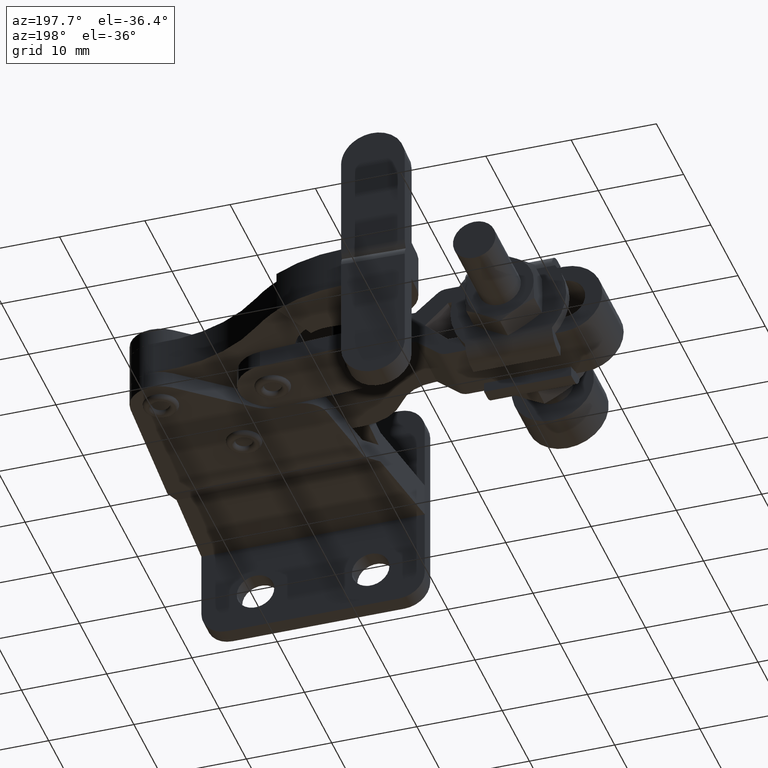
[diagram: clean part render]
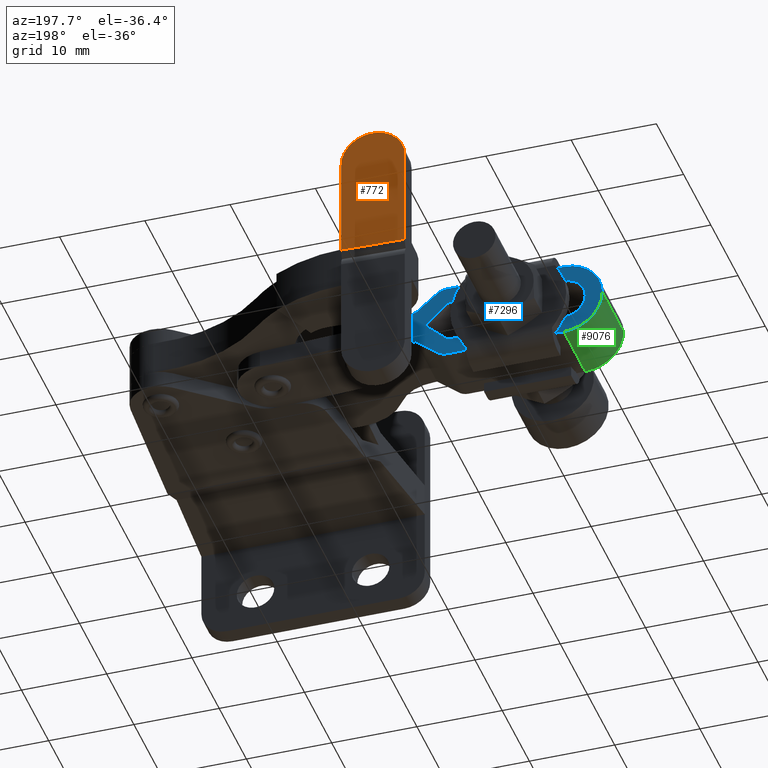
[diagram: same view with three faces highlighted in distinct colors, each labeled with its STEP entity id]
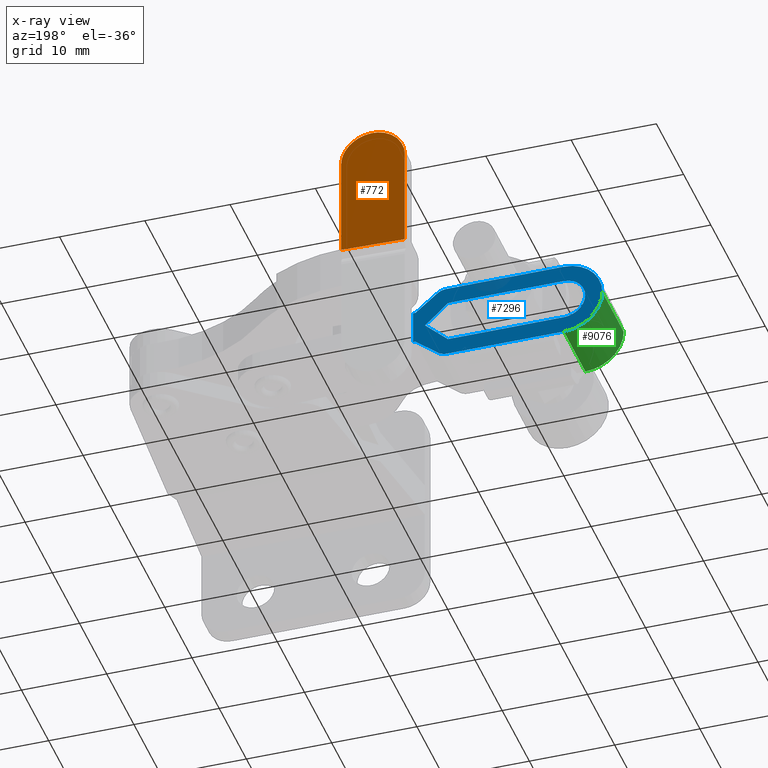
[diagram: x-ray of the same camera — body ghosted, the three highlighted faces saturated]
A machine part, auxiliary view with three faces highlighted in distinct colors.
The next image is the same camera in x-ray (body ghosted, the three faces saturated) — at least one of them is partly hidden behind the body in this view.
Their STEP definitions:

[orange] entity #772 — the highlighted planar face has unit normal (0.031, -0.9995, 0).
#279 = LINE ( 'NONE', #6201, #1841 ) ;
#337 = ORIENTED_EDGE ( 'NONE', *, *, #1821, .T. ) ;
#610 = CARTESIAN_POINT ( 'NONE',  ( -1.994264305203278500, 73.87658695655893800, 27.14979700761274700 ) ) ;
#708 = VECTOR ( 'NONE', #4959, 1000.000000000000100 ) ;
#747 = LINE ( 'NONE', #8525, #8665 ) ;
#772 = ADVANCED_FACE ( 'NONE', ( #1321 ), #6748, .F. ) ;
#1226 = CARTESIAN_POINT ( 'NONE',  ( -1.494685940705030400, 73.89207464042495100, 12.14979700761274700 ) ) ;
#1321 = FACE_OUTER_BOUND ( 'NONE', #4382, .T. ) ;
#1330 = VERTEX_POINT ( 'NONE', #2840 ) ;
#1409 = DIRECTION ( 'NONE',  ( 0.03098662345940447400, -0.9995197992869301300, 0.0000000000000000000 ) ) ;
#1821 = EDGE_CURVE ( 'NONE', #5206, #1330, #6803, .T. ) ;
#1841 = VECTOR ( 'NONE', #2393, 1000.000000000000000 ) ;
#2077 = EDGE_CURVE ( 'NONE', #9546, #5885, #9033, .T. ) ;
#2393 = DIRECTION ( 'NONE',  ( 0.0000000000000000000, 0.0000000000000000000, -1.000000000000000000 ) ) ;
#2840 = CARTESIAN_POINT ( 'NONE',  ( -8.892783287429612200, 73.66272244853988100, 12.14979700761274700 ) ) ;
#3006 = CARTESIAN_POINT ( 'NONE',  ( -1.494685940705030400, 73.89207464042495100, 23.94897143930094100 ) ) ;
#3671 = ORIENTED_EDGE ( 'NONE', *, *, #7273, .F. ) ;
#4382 = EDGE_LOOP ( 'NONE', ( #7222, #337, #3671, #7305 ) ) ;
#4514 = CARTESIAN_POINT ( 'NONE',  ( -8.892783287429777400, 73.66272244853989500, 31.35062257592454000 ) ) ;
#4959 = DIRECTION ( 'NONE',  ( -0.9995197992869301300, -0.03098662345940447400, -0.0000000000000000000 ) ) ;
#5206 = VERTEX_POINT ( 'NONE', #1226 ) ;
#5744 = CARTESIAN_POINT ( 'NONE',  ( -1.994264305203278500, 73.87658695655893800, 12.14979700761274700 ) ) ;
#5885 = VERTEX_POINT ( 'NONE', #7421 ) ;
#6201 = CARTESIAN_POINT ( 'NONE',  ( -1.494685940705030400, 73.89207464042495100, 27.14979700761274700 ) ) ;
#6248 = DIRECTION ( 'NONE',  ( 0.0000000000000000000, 0.0000000000000000000, -1.000000000000000000 ) ) ;
#6748 = PLANE ( 'NONE',  #8981 ) ;
#6803 = LINE ( 'NONE', #5744, #708 ) ;
#7222 = ORIENTED_EDGE ( 'NONE', *, *, #7708, .T. ) ;
#7273 = EDGE_CURVE ( 'NONE', #9546, #1330, #747, .T. ) ;
#7305 = ORIENTED_EDGE ( 'NONE', *, *, #2077, .T. ) ;
#7421 = CARTESIAN_POINT ( 'NONE',  ( -1.494685940705030400, 73.89207464042495100, 23.94897143930094100 ) ) ;
#7557 = DIRECTION ( 'NONE',  ( 0.9995197992869301300, 0.03098662345940447400, 0.0000000000000000000 ) ) ;
#7602 = CARTESIAN_POINT ( 'NONE',  ( -8.892783287429612200, 73.66272244853988100, 23.94897143930093400 ) ) ;
#7708 = EDGE_CURVE ( 'NONE', #5885, #5206, #279, .T. ) ;
#8525 = CARTESIAN_POINT ( 'NONE',  ( -8.892783287429612200, 73.66272244853988100, 13.14979700761274700 ) ) ;
#8665 = VECTOR ( 'NONE', #6248, 1000.000000000000000 ) ;
#8981 = AXIS2_PLACEMENT_3D ( 'NONE', #610, #1409, #7557 ) ;
#9033 =( BOUNDED_CURVE ( )  B_SPLINE_CURVE ( 3, ( #7602, #4514, #9115, #3006 ),
 .UNSPECIFIED., .F., .F. ) 
 B_SPLINE_CURVE_WITH_KNOTS ( ( 4, 4 ),
 ( 3.141592653589794000, 6.283185307179583600 ),
 .UNSPECIFIED. ) 
 CURVE ( )  GEOMETRIC_REPRESENTATION_ITEM ( )  RATIONAL_B_SPLINE_CURVE ( ( 1.000000000000000000, 0.3333333333333345900, 0.3333333333333345900, 1.000000000000000000 ) ) 
 REPRESENTATION_ITEM ( '' )  );
#9115 = CARTESIAN_POINT ( 'NONE',  ( -1.494685940705183100, 73.89207464042496600, 31.35062257592455400 ) ) ;
#9546 = VERTEX_POINT ( 'NONE', #9803 ) ;
#9803 = CARTESIAN_POINT ( 'NONE',  ( -8.892783287429612200, 73.66272244853988100, 23.94897143930093400 ) ) ;

[blue] entity #7296 — the highlighted planar face has unit normal (0, -1, 0).
#20 = CARTESIAN_POINT ( 'NONE',  ( -5.418919598095251400, 58.80000000000234900, 9.149797007612779300 ) ) ;
#180 = DIRECTION ( 'NONE',  ( 3.935653886122381100E-017, -1.000000000000000000, 9.155670635837064900E-019 ) ) ;
#205 = EDGE_CURVE ( 'NONE', #528, #1570, #7203, .T. ) ;
#245 = LINE ( 'NONE', #8180, #9680 ) ;
#286 = VERTEX_POINT ( 'NONE', #2490 ) ;
#290 = VERTEX_POINT ( 'NONE', #6278 ) ;
#372 = LINE ( 'NONE', #2207, #8258 ) ;
#429 = LINE ( 'NONE', #9842, #6302 ) ;
#467 = CIRCLE ( 'NONE', #1769, 2.499999999999998700 ) ;
#476 = DIRECTION ( 'NONE',  ( 3.935653886122381100E-017, -1.000000000000000000, 9.155670635837064900E-019 ) ) ;
#494 = ORIENTED_EDGE ( 'NONE', *, *, #5639, .T. ) ;
#497 = CARTESIAN_POINT ( 'NONE',  ( -22.80640179179125200, 58.80000000000234900, 11.14979700761280200 ) ) ;
#528 = VERTEX_POINT ( 'NONE', #1389 ) ;
#758 = DIRECTION ( 'NONE',  ( 0.7756134828186288500, 3.075531894660542300E-017, 0.6312081473412368700 ) ) ;
#790 = VERTEX_POINT ( 'NONE', #9105 ) ;
#806 = ORIENTED_EDGE ( 'NONE', *, *, #8142, .F. ) ;
#847 = EDGE_CURVE ( 'NONE', #3245, #286, #372, .T. ) ;
#1016 = DIRECTION ( 'NONE',  ( 3.935653886122381100E-017, -1.000000000000000000, 9.155670635837064900E-019 ) ) ;
#1046 = LINE ( 'NONE', #3429, #8941 ) ;
#1054 = VERTEX_POINT ( 'NONE', #3289 ) ;
#1097 = CARTESIAN_POINT ( 'NONE',  ( -6.528674530764204700, 58.80000000000234900, 11.14979700761278500 ) ) ;
#1131 = LINE ( 'NONE', #7225, #7466 ) ;
#1240 = EDGE_CURVE ( 'NONE', #7940, #1054, #467, .T. ) ;
#1243 = VERTEX_POINT ( 'NONE', #8112 ) ;
#1262 = DIRECTION ( 'NONE',  ( -1.000000000000000000, 0.0000000000000000000, 6.938893903907232300E-016 ) ) ;
#1306 = EDGE_CURVE ( 'NONE', #1817, #528, #245, .T. ) ;
#1312 = VECTOR ( 'NONE', #7633, 1000.000000000000200 ) ;
#1360 = ORIENTED_EDGE ( 'NONE', *, *, #205, .F. ) ;
#1389 = CARTESIAN_POINT ( 'NONE',  ( -5.416401791791470200, 58.80000000000234900, 13.14979700761277600 ) ) ;
#1497 = DIRECTION ( 'NONE',  ( -1.374065431884250400E-015, -9.155670635845381100E-019, -1.000000000000000000 ) ) ;
#1570 = VERTEX_POINT ( 'NONE', #9337 ) ;
#1573 = LINE ( 'NONE', #6858, #1312 ) ;
#1578 = AXIS2_PLACEMENT_3D ( 'NONE', #5049, #476, #5828 ) ;
#1588 = VECTOR ( 'NONE', #8298, 1000.000000000000000 ) ;
#1610 = VERTEX_POINT ( 'NONE', #6284 ) ;
#1769 = AXIS2_PLACEMENT_3D ( 'NONE', #497, #5847, #1262 ) ;
#1774 = CARTESIAN_POINT ( 'NONE',  ( -9.088997005149490600, 58.80000000000234900, 8.349797007612791000 ) ) ;
#1784 = CARTESIAN_POINT ( 'NONE',  ( -27.30640179179124900, 58.80000000000234900, 11.14979700761280600 ) ) ;
#1817 = VERTEX_POINT ( 'NONE', #6499 ) ;
#2108 = CARTESIAN_POINT ( 'NONE',  ( -22.80640179179125200, 58.80000000000234900, 11.14979700761280200 ) ) ;
#2207 = CARTESIAN_POINT ( 'NONE',  ( -22.80640179179125900, 58.80000000000234900, 6.649797007612803200 ) ) ;
#2490 = CARTESIAN_POINT ( 'NONE',  ( -9.088997005149559900, 58.80000000000234900, 6.649797007612788100 ) ) ;
#2520 = DIRECTION ( 'NONE',  ( -1.000000000000000000, 0.0000000000000000000, 1.020425574104003000E-015 ) ) ;
#2810 = VERTEX_POINT ( 'NONE', #6362 ) ;
#2844 = DIRECTION ( 'NONE',  ( -1.000000000000000000, 0.0000000000000000000, 7.709882115452480100E-016 ) ) ;
#2882 = VERTEX_POINT ( 'NONE', #8055 ) ;
#2922 = CARTESIAN_POINT ( 'NONE',  ( -22.80640179179125200, 58.80000000000234900, 13.64979700761280200 ) ) ;
#3118 = LINE ( 'NONE', #5281, #6948 ) ;
#3234 = CIRCLE ( 'NONE', #1578, 4.499999999999997300 ) ;
#3245 = VERTEX_POINT ( 'NONE', #7752 ) ;
#3289 = CARTESIAN_POINT ( 'NONE',  ( -22.80640179179125200, 58.80000000000234900, 8.649797007612802300 ) ) ;
#3335 = ORIENTED_EDGE ( 'NONE', *, *, #9294, .T. ) ;
#3429 = CARTESIAN_POINT ( 'NONE',  ( -22.80640179179125200, 58.80000000000234900, 8.649797007612802300 ) ) ;
#3520 = VERTEX_POINT ( 'NONE', #1784 ) ;
#3533 = CARTESIAN_POINT ( 'NONE',  ( -7.929055979537577200, 58.80000000000234900, 7.107003051599818400 ) ) ;
#3556 = EDGE_LOOP ( 'NONE', ( #9599, #806, #4156, #9016, #7983, #9794, #3599, #4702, #5371, #1360, #7931 ) ) ;
#3587 = LINE ( 'NONE', #2922, #1588 ) ;
#3599 = ORIENTED_EDGE ( 'NONE', *, *, #7937, .F. ) ;
#3873 = CARTESIAN_POINT ( 'NONE',  ( -9.031655630575935200, 58.80000000000234900, 13.95076435143397300 ) ) ;
#4018 = ORIENTED_EDGE ( 'NONE', *, *, #8063, .T. ) ;
#4046 = LINE ( 'NONE', #20, #5597 ) ;
#4156 = ORIENTED_EDGE ( 'NONE', *, *, #5000, .F. ) ;
#4215 = DIRECTION ( 'NONE',  ( 1.000000000000000000, 3.935653886122381100E-017, -1.122791881750994000E-015 ) ) ;
#4226 = DIRECTION ( 'NONE',  ( -0.7682212795973505400, -2.937265305472693900E-017, 0.6401843996645103500 ) ) ;
#4546 = VECTOR ( 'NONE', #7061, 1000.000000000000000 ) ;
#4633 = EDGE_LOOP ( 'NONE', ( #3335, #7238, #4018, #494, #5481, #8296 ) ) ;
#4639 = DIRECTION ( 'NONE',  ( -1.000000000000000000, 0.0000000000000000000, 1.020425574104002000E-015 ) ) ;
#4702 = ORIENTED_EDGE ( 'NONE', *, *, #8290, .F. ) ;
#4733 = EDGE_CURVE ( 'NONE', #1054, #5247, #1046, .T. ) ;
#4737 = CARTESIAN_POINT ( 'NONE',  ( -5.123617361773278300, 58.80000000000234900, 35.64979700761279000 ) ) ;
#4819 = FACE_OUTER_BOUND ( 'NONE', #3556, .T. ) ;
#5000 = EDGE_CURVE ( 'NONE', #9444, #2810, #4046, .T. ) ;
#5049 = CARTESIAN_POINT ( 'NONE',  ( -22.80640179179125200, 58.80000000000234900, 11.14979700761280200 ) ) ;
#5154 = VECTOR ( 'NONE', #4226, 1000.000000000000000 ) ;
#5247 = VERTEX_POINT ( 'NONE', #7367 ) ;
#5281 = CARTESIAN_POINT ( 'NONE',  ( 21.69359820820852000, 58.80000000000234900, 9.149797007612750800 ) ) ;
#5371 = ORIENTED_EDGE ( 'NONE', *, *, #7215, .F. ) ;
#5481 = ORIENTED_EDGE ( 'NONE', *, *, #1240, .T. ) ;
#5524 = DIRECTION ( 'NONE',  ( -1.000000000000000000, -3.935653886122381100E-017, 9.314502098102209100E-016 ) ) ;
#5597 = VECTOR ( 'NONE', #758, 1000.000000000000200 ) ;
#5612 = CARTESIAN_POINT ( 'NONE',  ( -22.80640179179125200, 58.80000000000234900, 11.14979700761280200 ) ) ;
#5639 = EDGE_CURVE ( 'NONE', #1243, #7940, #9058, .T. ) ;
#5749 = CIRCLE ( 'NONE', #8902, 4.499999999999997300 ) ;
#5769 = AXIS2_PLACEMENT_3D ( 'NONE', #5612, #1016, #6379 ) ;
#5773 = CARTESIAN_POINT ( 'NONE',  ( -5.416401791791470200, 58.80000000000234900, 13.14979700761277700 ) ) ;
#5828 = DIRECTION ( 'NONE',  ( -1.000000000000000000, 0.0000000000000000000, 7.709882115452480100E-016 ) ) ;
#5847 = DIRECTION ( 'NONE',  ( 3.935653886122381100E-017, -1.000000000000000000, 9.155670635837064900E-019 ) ) ;
#5905 = AXIS2_PLACEMENT_3D ( 'NONE', #3873, #9240, #4639 ) ;
#5973 = EDGE_CURVE ( 'NONE', #1817, #2882, #429, .T. ) ;
#6164 = CIRCLE ( 'NONE', #6848, 1.700000000000002000 ) ;
#6168 = EDGE_CURVE ( 'NONE', #286, #9444, #6164, .T. ) ;
#6278 = CARTESIAN_POINT ( 'NONE',  ( -22.80640179179124500, 58.80000000000234900, 15.64979700761279900 ) ) ;
#6284 = CARTESIAN_POINT ( 'NONE',  ( -9.207245959335651300, 58.80000000000234900, 13.64979700761278500 ) ) ;
#6302 = VECTOR ( 'NONE', #1497, 1000.000000000000000 ) ;
#6336 = EDGE_CURVE ( 'NONE', #9853, #1610, #1131, .T. ) ;
#6362 = CARTESIAN_POINT ( 'NONE',  ( -5.418919598095251400, 58.80000000000234900, 9.149797007612781000 ) ) ;
#6379 = DIRECTION ( 'NONE',  ( -1.000000000000000000, 0.0000000000000000000, 6.938893903907232300E-016 ) ) ;
#6499 = CARTESIAN_POINT ( 'NONE',  ( -5.123617361773299600, 58.80000000000234900, 13.14979700761277600 ) ) ;
#6605 = FACE_BOUND ( 'NONE', #4633, .T. ) ;
#6848 = AXIS2_PLACEMENT_3D ( 'NONE', #1774, #7094, #2520 ) ;
#6858 = CARTESIAN_POINT ( 'NONE',  ( -6.528674530764204700, 58.80000000000234900, 11.14979700761278300 ) ) ;
#6948 = VECTOR ( 'NONE', #9869, 1000.000000000000000 ) ;
#7061 = DIRECTION ( 'NONE',  ( -1.000000000000000000, -3.935653886122381100E-017, 1.121142447841948800E-015 ) ) ;
#7094 = DIRECTION ( 'NONE',  ( 3.935653886122381100E-017, -1.000000000000000000, 9.155670635837064900E-019 ) ) ;
#7203 = LINE ( 'NONE', #5773, #5154 ) ;
#7215 = EDGE_CURVE ( 'NONE', #1570, #790, #9392, .T. ) ;
#7225 = CARTESIAN_POINT ( 'NONE',  ( -6.528674530764204700, 58.80000000000234900, 11.14979700761278300 ) ) ;
#7238 = ORIENTED_EDGE ( 'NONE', *, *, #6336, .T. ) ;
#7296 = ADVANCED_FACE ( 'NONE', ( #4819, #6605 ), #9301, .F. ) ;
#7367 = CARTESIAN_POINT ( 'NONE',  ( -9.207245959335450500, 58.80000000000234900, 8.649797007612784600 ) ) ;
#7442 = DIRECTION ( 'NONE',  ( 3.935653886122381100E-017, -1.000000000000000000, 9.155670635837064900E-019 ) ) ;
#7466 = VECTOR ( 'NONE', #9518, 1000.000000000000100 ) ;
#7633 = DIRECTION ( 'NONE',  ( 0.7310552682428462800, 2.908071197851355500E-017, 0.6823182503600355700 ) ) ;
#7752 = CARTESIAN_POINT ( 'NONE',  ( -22.80640179179125900, 58.80000000000234900, 6.649797007612803200 ) ) ;
#7842 = CARTESIAN_POINT ( 'NONE',  ( -22.80640179179124500, 58.80000000000234900, 15.64979700761279900 ) ) ;
#7931 = ORIENTED_EDGE ( 'NONE', *, *, #1306, .F. ) ;
#7937 = EDGE_CURVE ( 'NONE', #290, #3520, #3234, .T. ) ;
#7940 = VERTEX_POINT ( 'NONE', #8097 ) ;
#7983 = ORIENTED_EDGE ( 'NONE', *, *, #847, .F. ) ;
#8055 = CARTESIAN_POINT ( 'NONE',  ( -5.123617361773320100, 58.80000000000234900, 9.149797007612781000 ) ) ;
#8063 = EDGE_CURVE ( 'NONE', #1610, #1243, #3587, .T. ) ;
#8097 = CARTESIAN_POINT ( 'NONE',  ( -25.30640179179124900, 58.80000000000234900, 11.14979700761280400 ) ) ;
#8112 = CARTESIAN_POINT ( 'NONE',  ( -22.80640179179125200, 58.80000000000234900, 13.64979700761280200 ) ) ;
#8142 = EDGE_CURVE ( 'NONE', #2810, #2882, #3118, .T. ) ;
#8180 = CARTESIAN_POINT ( 'NONE',  ( 21.69359820820852400, 58.80000000000234900, 13.14979700761274900 ) ) ;
#8258 = VECTOR ( 'NONE', #9172, 1000.000000000000000 ) ;
#8290 = EDGE_CURVE ( 'NONE', #790, #290, #8636, .T. ) ;
#8296 = ORIENTED_EDGE ( 'NONE', *, *, #4733, .T. ) ;
#8298 = DIRECTION ( 'NONE',  ( -1.000000000000000000, -3.935653886122381100E-017, 1.218462717721384900E-015 ) ) ;
#8636 = LINE ( 'NONE', #7842, #4546 ) ;
#8902 = AXIS2_PLACEMENT_3D ( 'NONE', #2108, #7442, #2844 ) ;
#8941 = VECTOR ( 'NONE', #4215, 1000.000000000000000 ) ;
#9016 = ORIENTED_EDGE ( 'NONE', *, *, #6168, .F. ) ;
#9058 = CIRCLE ( 'NONE', #5769, 2.499999999999998700 ) ;
#9105 = CARTESIAN_POINT ( 'NONE',  ( -9.088997005149483500, 58.80000000000234900, 15.64979700761278300 ) ) ;
#9172 = DIRECTION ( 'NONE',  ( 1.000000000000000000, 3.935653886122381100E-017, -1.247603939863102300E-015 ) ) ;
#9240 = DIRECTION ( 'NONE',  ( 3.935653886122381100E-017, -1.000000000000000000, 9.155670635837064900E-019 ) ) ;
#9294 = EDGE_CURVE ( 'NONE', #5247, #9853, #1573, .T. ) ;
#9301 = PLANE ( 'NONE',  #9511 ) ;
#9337 = CARTESIAN_POINT ( 'NONE',  ( -7.901634068714576700, 58.80000000000234900, 15.22082390504886200 ) ) ;
#9392 = CIRCLE ( 'NONE', #5905, 1.700000000000003500 ) ;
#9444 = VERTEX_POINT ( 'NONE', #3533 ) ;
#9511 = AXIS2_PLACEMENT_3D ( 'NONE', #4737, #180, #5524 ) ;
#9518 = DIRECTION ( 'NONE',  ( -0.7310552682428707000, -2.837339683092917400E-017, 0.6823182503600094800 ) ) ;
#9599 = ORIENTED_EDGE ( 'NONE', *, *, #5973, .T. ) ;
#9680 = VECTOR ( 'NONE', #9719, 1000.000000000000000 ) ;
#9719 = DIRECTION ( 'NONE',  ( -1.000000000000000000, -3.935653886122381100E-017, 1.059426858720350600E-015 ) ) ;
#9794 = ORIENTED_EDGE ( 'NONE', *, *, #9886, .F. ) ;
#9842 = CARTESIAN_POINT ( 'NONE',  ( -5.123617361773278300, 58.80000000000234900, 35.64979700761279000 ) ) ;
#9853 = VERTEX_POINT ( 'NONE', #1097 ) ;
#9869 = DIRECTION ( 'NONE',  ( 1.000000000000000000, 3.935653886122381100E-017, -1.059414974157815100E-015 ) ) ;
#9886 = EDGE_CURVE ( 'NONE', #3520, #3245, #5749, .T. ) ;

[green] entity #9076 — the highlighted cylindrical surface (partial cylindrical patch) has radius 4.5 mm, axis along (-0, -1, 0).
#5 = VERTEX_POINT ( 'NONE', #1414 ) ;
#526 = DIRECTION ( 'NONE',  ( -1.170938346284344800E-016, -1.000000000000000000, 9.155670635840493100E-019 ) ) ;
#700 = DIRECTION ( 'NONE',  ( -1.170938346284344800E-016, -1.000000000000000000, 9.155670635840493100E-019 ) ) ;
#722 = VECTOR ( 'NONE', #4812, 1000.000000000000000 ) ;
#797 = CIRCLE ( 'NONE', #8520, 4.499999999999997300 ) ;
#817 = EDGE_CURVE ( 'NONE', #3245, #5, #843, .T. ) ;
#843 = LINE ( 'NONE', #7593, #2849 ) ;
#1414 = CARTESIAN_POINT ( 'NONE',  ( -22.80640179179125900, 50.90000000000235000, 6.649797007612801500 ) ) ;
#1784 = CARTESIAN_POINT ( 'NONE',  ( -27.30640179179124900, 58.80000000000234900, 11.14979700761280600 ) ) ;
#1815 = ORIENTED_EDGE ( 'NONE', *, *, #5444, .T. ) ;
#2108 = CARTESIAN_POINT ( 'NONE',  ( -22.80640179179125200, 58.80000000000234900, 11.14979700761280200 ) ) ;
#2200 = CARTESIAN_POINT ( 'NONE',  ( -27.30640179179124900, 50.90000000000235000, 11.14979700761280600 ) ) ;
#2732 = CYLINDRICAL_SURFACE ( 'NONE', #8124, 4.499999999999997300 ) ;
#2844 = DIRECTION ( 'NONE',  ( -1.000000000000000000, 0.0000000000000000000, 7.709882115452480100E-016 ) ) ;
#2849 = VECTOR ( 'NONE', #700, 1000.000000000000000 ) ;
#2975 = FACE_OUTER_BOUND ( 'NONE', #6334, .T. ) ;
#3245 = VERTEX_POINT ( 'NONE', #7752 ) ;
#3520 = VERTEX_POINT ( 'NONE', #1784 ) ;
#3869 = DIRECTION ( 'NONE',  ( -1.084202172485504400E-019, 1.000000000000000000, -9.155670635837427000E-019 ) ) ;
#3951 = ORIENTED_EDGE ( 'NONE', *, *, #8305, .F. ) ;
#4812 = DIRECTION ( 'NONE',  ( -1.170938346284344800E-016, -1.000000000000000000, 9.155670635840493100E-019 ) ) ;
#5444 = EDGE_CURVE ( 'NONE', #5, #8611, #797, .T. ) ;
#5749 = CIRCLE ( 'NONE', #8902, 4.499999999999997300 ) ;
#6334 = EDGE_LOOP ( 'NONE', ( #3951, #7695, #7568, #1815 ) ) ;
#7442 = DIRECTION ( 'NONE',  ( 3.935653886122381100E-017, -1.000000000000000000, 9.155670635837064900E-019 ) ) ;
#7568 = ORIENTED_EDGE ( 'NONE', *, *, #817, .T. ) ;
#7593 = CARTESIAN_POINT ( 'NONE',  ( -22.80640179179125900, 65.40000000000239300, 6.649797007612801500 ) ) ;
#7695 = ORIENTED_EDGE ( 'NONE', *, *, #9886, .T. ) ;
#7752 = CARTESIAN_POINT ( 'NONE',  ( -22.80640179179125900, 58.80000000000234900, 6.649797007612803200 ) ) ;
#8124 = AXIS2_PLACEMENT_3D ( 'NONE', #9651, #526, #9681 ) ;
#8305 = EDGE_CURVE ( 'NONE', #3520, #8611, #8385, .T. ) ;
#8385 = LINE ( 'NONE', #9413, #722 ) ;
#8447 = CARTESIAN_POINT ( 'NONE',  ( -22.80640179179125200, 50.90000000000235000, 11.14979700761280200 ) ) ;
#8520 = AXIS2_PLACEMENT_3D ( 'NONE', #8447, #3869, #9236 ) ;
#8611 = VERTEX_POINT ( 'NONE', #2200 ) ;
#8902 = AXIS2_PLACEMENT_3D ( 'NONE', #2108, #7442, #2844 ) ;
#9076 = ADVANCED_FACE ( 'NONE', ( #2975 ), #2732, .T. ) ;
#9236 = DIRECTION ( 'NONE',  ( 1.000000000000000000, 0.0000000000000000000, -7.709882115452480100E-016 ) ) ;
#9413 = CARTESIAN_POINT ( 'NONE',  ( -27.30640179179129100, 65.40000000000239300, 11.14979700761280600 ) ) ;
#9651 = CARTESIAN_POINT ( 'NONE',  ( -22.80640179179129100, 65.40000000000239300, 11.14979700761280200 ) ) ;
#9681 = DIRECTION ( 'NONE',  ( -1.000000000000000000, 0.0000000000000000000, 7.709882115452480100E-016 ) ) ;
#9886 = EDGE_CURVE ( 'NONE', #3520, #3245, #5749, .T. ) ;